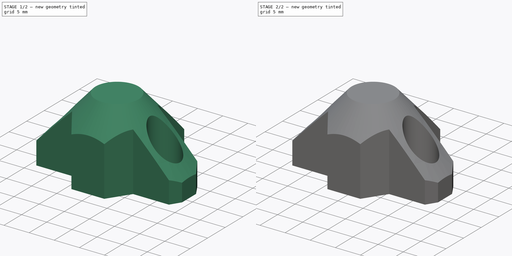
[diagram: build sequence overview — one tinted view per stage of 2, left to right]
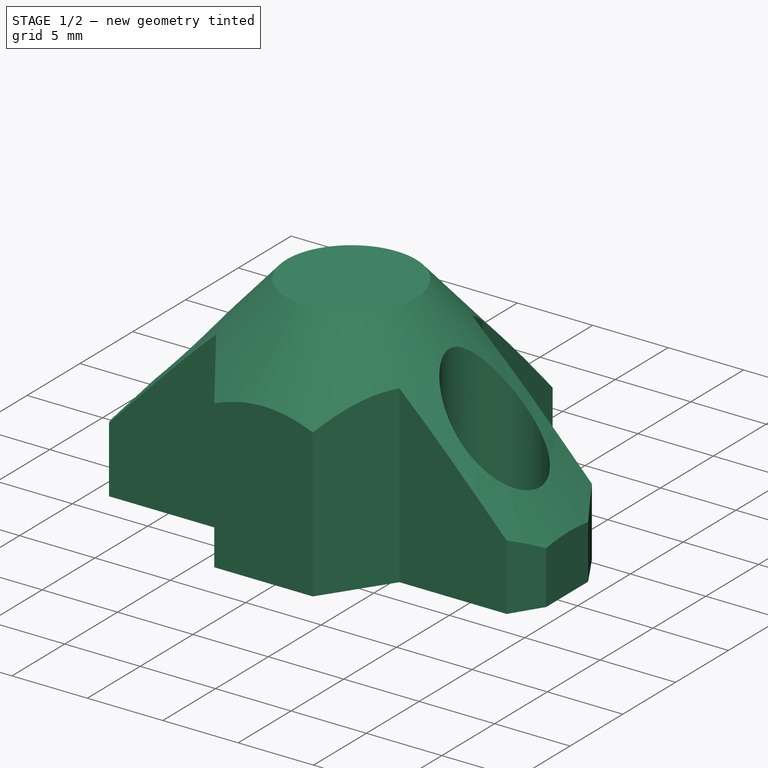
[diagram: stage 1 of 2 — iso view after this stage's code; geometry added in this stage tinted green]
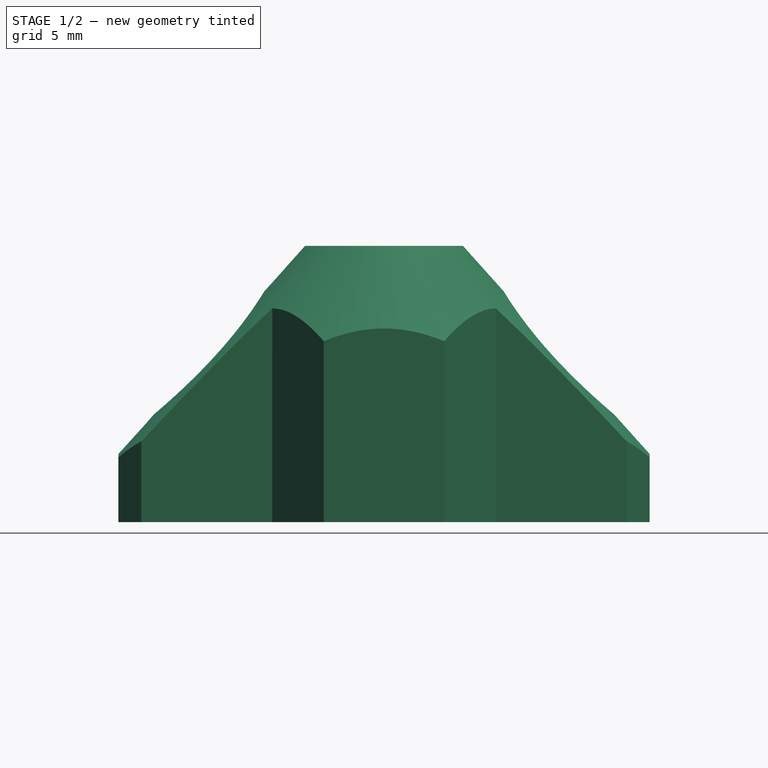
[diagram: stage 1 of 2 — front view after this stage's code; geometry added in this stage tinted green]
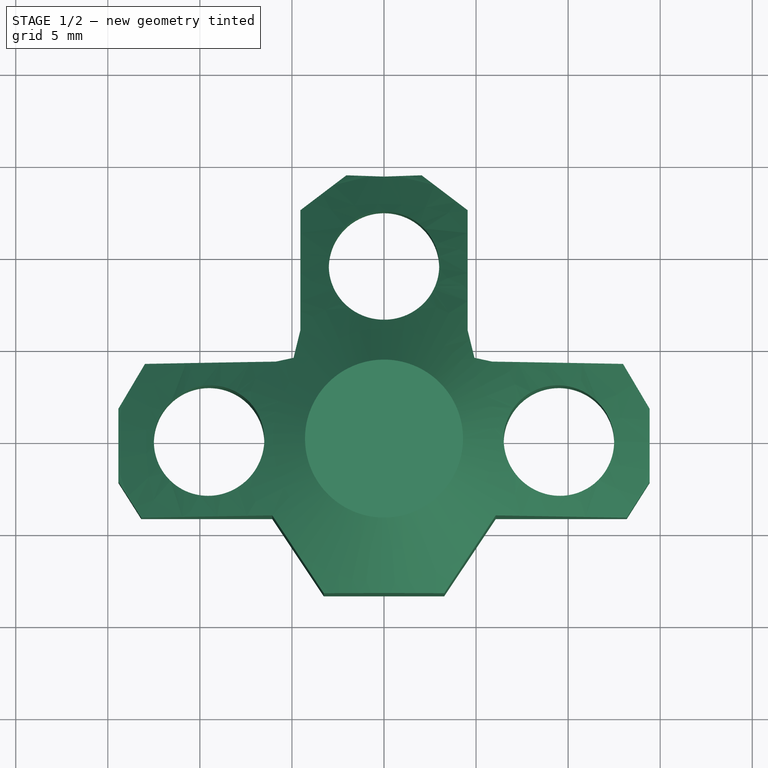
[diagram: stage 1 of 2 — top view after this stage's code; geometry added in this stage tinted green]
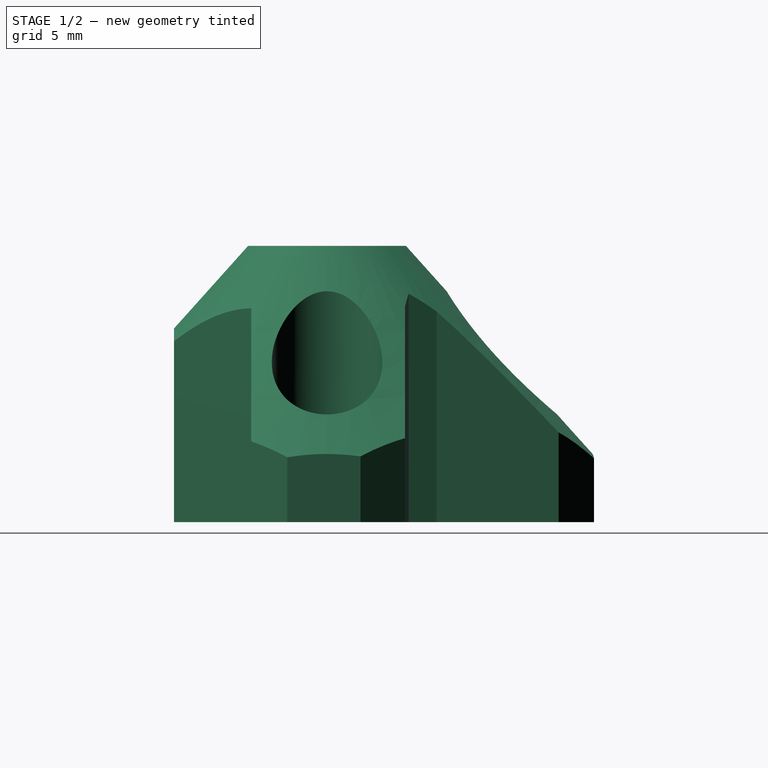
[diagram: stage 1 of 2 — right view after this stage's code; geometry added in this stage tinted green]
FCSTD DOCUMENT  (FreeCAD 0.19R24267 +99 (Git))
Label: 脚垫
License: All rights reserved
LicenseURL: http://en.wikipedia.org/wiki/All_rights_reserved
objects: Sketcher::SketchObject×3, PartDesign::Pad×2, PartDesign::Groove×1, PartDesign::Body×1, App::MeasureDistance×1
note: 10 computed .brp shape members not serialized (recipe doc carries the construction recipe); baked Part::Feature solids carry a one-line shape summary decoded from their .brp

FEATURE [Sketcher::SketchObject] Sketch
  FullyConstrained = false
  MapMode = 5
  Support = -> [XY_Plane]
  sketch-geometry (36):
    g0: LineSegment StartX=0 StartY=9.5 StartZ=0 EndX=0 EndY=0 EndZ=0
    g1: LineSegment StartX=0 StartY=0 StartZ=0 EndX=-9.5 EndY=0 EndZ=0
    g2: LineSegment StartX=0 StartY=0 StartZ=0 EndX=9.5 EndY=0 EndZ=0
    g3: Circle CenterX=0 CenterY=9.5 CenterZ=0 NormalX=0 NormalY=0 NormalZ=1 AngleXU=0 Radius=3
    g4: Circle CenterX=-9.5 CenterY=0 CenterZ=0 NormalX=0 NormalY=0 NormalZ=1 AngleXU=0 Radius=3
    g5: Circle CenterX=9.5 CenterY=0 CenterZ=0 NormalX=0 NormalY=0 NormalZ=1 AngleXU=0 Radius=3
    g6: LineSegment StartX=0 StartY=14.4274 StartZ=0 EndX=-2.04188 EndY=14.5027 EndZ=0
    g7: LineSegment StartX=-2.04188 StartY=14.5027 StartZ=0 EndX=-4.54024 EndY=12.5827 EndZ=0
    g8: LineSegment StartX=-4.54024 StartY=12.5827 StartZ=0 EndX=-4.54024 EndY=8.14015 EndZ=0
    g9: LineSegment StartX=-4.54024 StartY=8.14015 StartZ=0 EndX=-4.54024 EndY=5.95492 EndZ=0
    g10: LineSegment StartX=-4.54024 StartY=5.95492 StartZ=0 EndX=-4.9124 EndY=4.43243 EndZ=0
    g11: LineSegment StartX=-4.9124 StartY=4.43243 StartZ=0 EndX=-5.87368 EndY=4.2379 EndZ=0
    g12: LineSegment StartX=-5.87368 StartY=4.2379 StartZ=0 EndX=-12.9817 EndY=4.2379 EndZ=0
    g13: LineSegment StartX=-12.9817 StartY=4.2379 StartZ=0 EndX=-14.4282 EndY=1.81522 EndZ=0
    g14: LineSegment StartX=-14.4282 StartY=1.81522 StartZ=0 EndX=-14.4282 EndY=0 EndZ=0
    g15: LineSegment StartX=-14.4282 StartY=0 StartZ=0 EndX=-14.4282 EndY=-2.15798 EndZ=0
    g16: LineSegment StartX=-14.4282 StartY=-2.15798 StartZ=0 EndX=-13.1848 EndY=-4.11569 EndZ=0
    g17: LineSegment StartX=-13.1848 StartY=-4.11569 StartZ=0 EndX=-6.06929 EndY=-4.11569 EndZ=0
    g18: LineSegment StartX=-6.06929 StartY=-4.11569 StartZ=0 EndX=-3.26916 EndY=-8.31348 EndZ=0
    g19: LineSegment StartX=-3.26916 StartY=-8.31348 StartZ=0 EndX=0 EndY=-8.31348 EndZ=0
    g20: LineSegment StartX=0 StartY=9.5 StartZ=0 EndX=0 EndY=0 EndZ=0
    g21: LineSegment StartX=0 StartY=0 StartZ=0 EndX=9.5 EndY=0 EndZ=0
    g22: LineSegment StartX=0 StartY=14.4274 StartZ=0 EndX=2.04188 EndY=14.5027 EndZ=0
    g23: LineSegment StartX=2.04188 StartY=14.5027 StartZ=0 EndX=4.54024 EndY=12.5827 EndZ=0
    g24: LineSegment StartX=4.54024 StartY=12.5827 StartZ=0 EndX=4.54024 EndY=8.14015 EndZ=0
    g25: LineSegment StartX=4.54024 StartY=8.14015 StartZ=0 EndX=4.54024 EndY=5.95492 EndZ=0
    g26: LineSegment StartX=4.54024 StartY=5.95492 StartZ=0 EndX=4.9124 EndY=4.43243 EndZ=0
    g27: LineSegment StartX=4.9124 StartY=4.43243 StartZ=0 EndX=5.87368 EndY=4.2379 EndZ=0
    g28: LineSegment StartX=5.87368 StartY=4.2379 StartZ=0 EndX=12.9817 EndY=4.2379 EndZ=0
    g29: LineSegment StartX=12.9817 StartY=4.2379 StartZ=0 EndX=14.4282 EndY=1.81522 EndZ=0
    g30: LineSegment StartX=14.4282 StartY=1.81522 StartZ=0 EndX=14.4282 EndY=0 EndZ=0
    g31: LineSegment StartX=14.4282 StartY=0 StartZ=0 EndX=14.4282 EndY=-2.15798 EndZ=0
    g32: LineSegment StartX=14.4282 StartY=-2.15798 StartZ=0 EndX=13.1848 EndY=-4.11569 EndZ=0
    g33: LineSegment StartX=13.1848 StartY=-4.11569 StartZ=0 EndX=6.06929 EndY=-4.11569 EndZ=0
    g34: LineSegment StartX=6.06929 StartY=-4.11569 StartZ=0 EndX=3.26916 EndY=-8.31348 EndZ=0
    g35: LineSegment StartX=3.26916 StartY=-8.31348 StartZ=0 EndX=0 EndY=-8.31348 EndZ=0
  constraints (54):
    c: Coincident(g0,g-1)
    c: Coincident(g1,g-1)
    c: Coincident(g2,g-1)
    c: Equal(g2,g0)
    c: Equal(g0,g1)
    c: Distance(g0) = 9.5
    c: Diameter(g4) = 6
    c: Equal(g3,g4)
    c: Equal(g5,g3)
    c: PointOnObject(g6,g-2)
    c: Coincident(g6,g7)
    c: Coincident(g7,g8)
    c: Vertical(g8)
    c: Coincident(g8,g9)
    c: Vertical(g9)
    c: Coincident(g9,g10)
    c: Coincident(g10,g11)
    c: Coincident(g11,g12)
    c: Horizontal(g12)
    c: Coincident(g12,g13)
    c: Coincident(g13,g14)
    c: PointOnObject(g14,g-1)
    c: Vertical(g14)
    c: Coincident(g14,g15)
    c: Vertical(g15)
    c: Coincident(g15,g16)
    c: Coincident(g16,g17)
    c: Horizontal(g17)
    c: Coincident(g17,g18)
    c: Coincident(g18,g19)
    c: PointOnObject(g19,g-2)
    c: Horizontal(g19)
    c: Equal(g20,g21)
    c: Distance(g20) = 9.5
    c: Coincident(g22,g23)
    c: Coincident(g23,g24)
    c: Vertical(g24)
    c: Coincident(g24,g25)
    c: Vertical(g25)
    c: Coincident(g25,g26)
    c: Coincident(g26,g27)
    c: Coincident(g27,g28)
    c: Horizontal(g28)
    c: Coincident(g28,g29)
    c: Coincident(g29,g30)
    c: Vertical(g30)
    c: Coincident(g30,g31)
    c: Vertical(g31)
    c: Coincident(g31,g32)
    c: Coincident(g32,g33)
    c: Horizontal(g33)
    c: Coincident(g33,g34)
    c: Coincident(g34,g35)
    c: Horizontal(g35)
FEATURE [PartDesign::Pad] Pad
  Direction = (1,1,1)
  Length = 15
  Length2 = 100
  Profile = -> Sketch
  Type = 0
FEATURE [Sketcher::SketchObject] Sketch001
  FullyConstrained = false
  MapMode = 5
  Placement = pos=(0,0,0) rot=(1,0,0;1.5708rad)
  Support = -> [XZ_Plane]
  sketch-geometry (3):
    g0: LineSegment StartX=3.00014 StartY=16.4385 StartZ=0 EndX=15.4618 EndY=2.54628 EndZ=0
    g1: LineSegment StartX=15.4618 StartY=2.54628 StartZ=0 EndX=18.0595 EndY=16.4385 EndZ=0
    g2: LineSegment StartX=18.0595 StartY=16.4385 StartZ=0 EndX=3.00014 EndY=16.4385 EndZ=0
  constraints (4):
    c: Coincident(g0,g1)
    c: Coincident(g1,g2)
    c: Coincident(g2,g0)
    c: Horizontal(g2)
FEATURE [PartDesign::Groove] Groove
  Angle = 360
  Axis = (0,2e-16,1)
  Base = (0,0,0)
  BaseFeature = -> Pad
  Profile = -> Sketch001
  ReferenceAxis = -> Sketch001 [V_Axis]
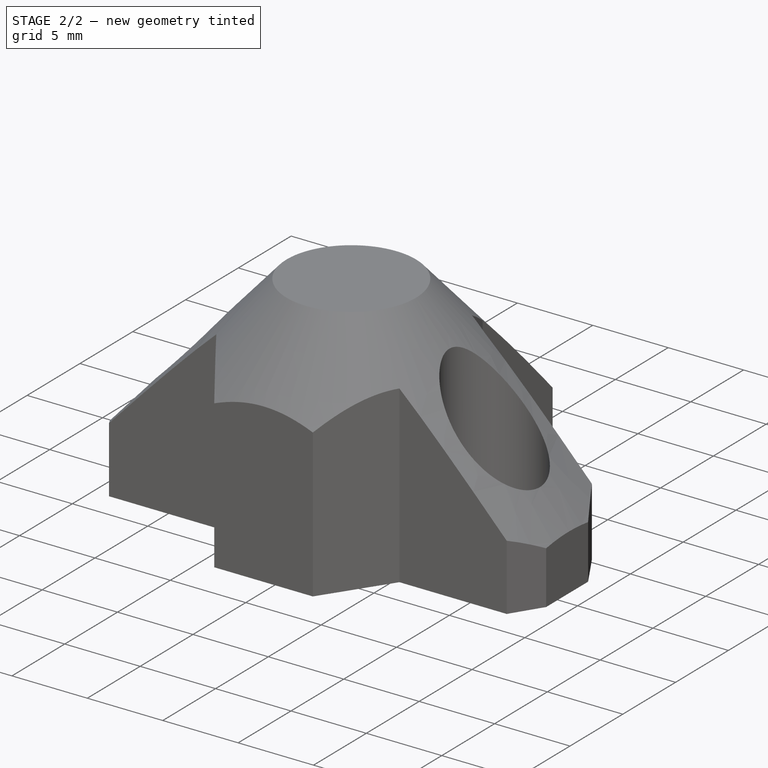
[diagram: stage 2 of 2 — iso view after this stage's code; geometry added in this stage tinted green]
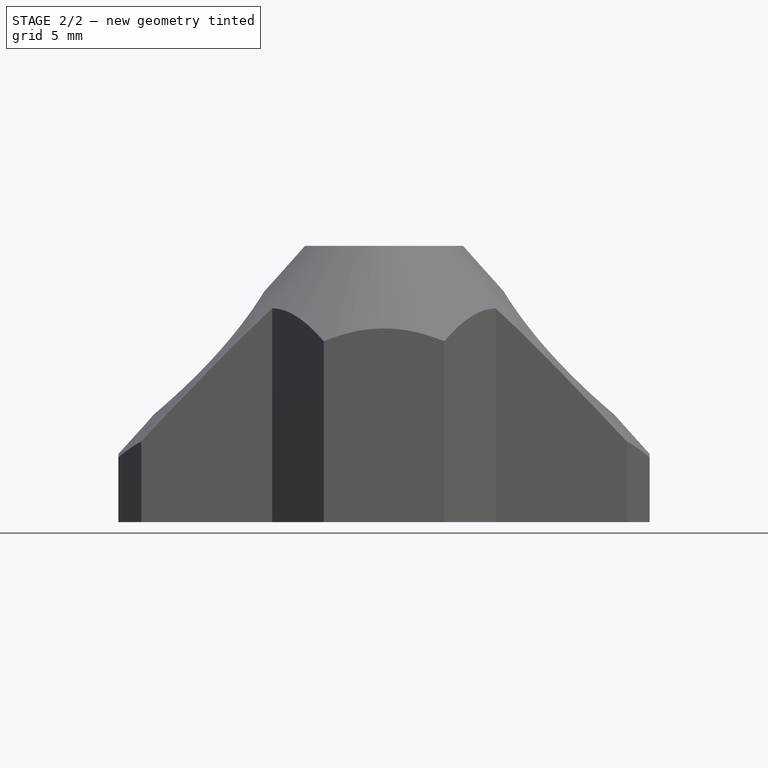
[diagram: stage 2 of 2 — front view after this stage's code; geometry added in this stage tinted green]
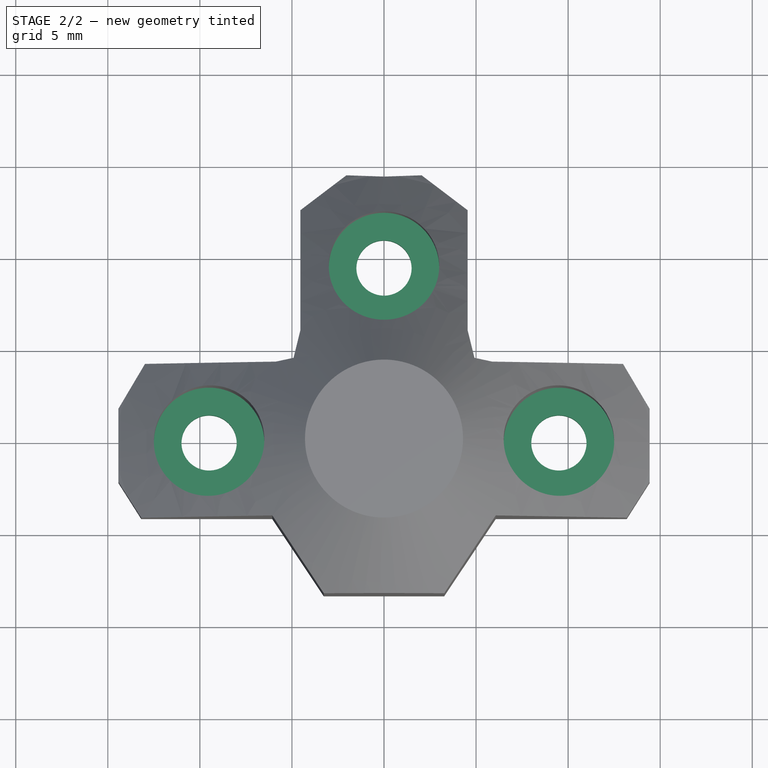
[diagram: stage 2 of 2 — top view after this stage's code; geometry added in this stage tinted green]
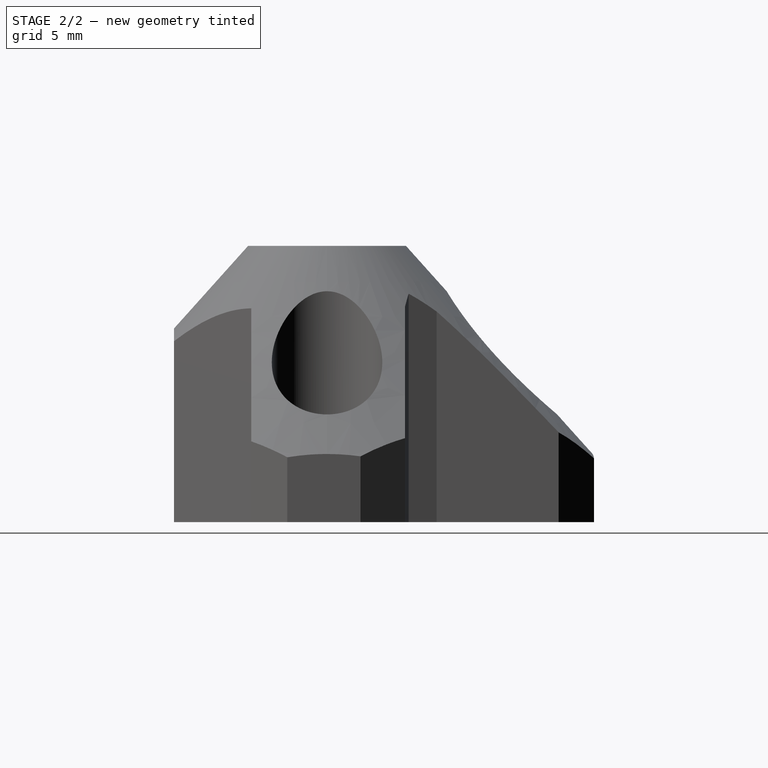
[diagram: stage 2 of 2 — right view after this stage's code; geometry added in this stage tinted green]
FEATURE [Sketcher::SketchObject] Sketch002
  ExternalGeometry = -> [Groove]
  FullyConstrained = false
  MapMode = 5
  Placement = pos=(0,0,0) rot=(1,0,0;3.14159rad)
  Support = -> [Groove]
  sketch-geometry (18):
    g0: Circle CenterX=-9.5 CenterY=0 CenterZ=0 NormalX=0 NormalY=0 NormalZ=1 AngleXU=0 Radius=1.5
    g1: Circle CenterX=9.5 CenterY=0 CenterZ=0 NormalX=0 NormalY=0 NormalZ=1 AngleXU=0 Radius=1.5
    g2: Circle CenterX=0 CenterY=-9.5 CenterZ=0 NormalX=0 NormalY=0 NormalZ=1 AngleXU=0 Radius=1.5
    g3: LineSegment StartX=-12.3071 StartY=3.30232 StartZ=0 EndX=11.6372 EndY=3.30232 EndZ=0
    g4: LineSegment StartX=11.6372 StartY=3.30232 StartZ=0 EndX=13.3314 EndY=0.817521 EndZ=0
    g5: LineSegment StartX=13.3314 StartY=0.817521 StartZ=0 EndX=13.0679 EndY=-2.11905 EndZ=0
    g6: LineSegment StartX=13.0679 StartY=-2.11905 StartZ=0 EndX=11.1855 EndY=-3.4744 EndZ=0
    g7: LineSegment StartX=11.1855 StartY=-3.4744 StartZ=0 EndX=3.39224 EndY=-3.4744 EndZ=0
    g8: LineSegment StartX=3.39224 StartY=-3.4744 StartZ=0 EndX=3.65578 EndY=-9.27225 EndZ=0
    g9: LineSegment StartX=3.65578 StartY=-9.27225 StartZ=0 EndX=2.94046 EndY=-12.6606 EndZ=0
    g10: LineSegment StartX=2.94046 StartY=-12.6606 StartZ=0 EndX=0.342722 EndY=-13.3759 EndZ=0
    g11: LineSegment StartX=0.342722 StartY=-13.3759 StartZ=0 EndX=-2.89504 EndY=-12.7736 EndZ=0
    g12: LineSegment StartX=-2.89504 StartY=-12.7736 StartZ=0 EndX=-3.8739 EndY=-9.15931 EndZ=0
    g13: LineSegment StartX=-3.8739 StartY=-9.15931 StartZ=0 EndX=-3.45977 EndY=-4.52855 EndZ=0
    g14: LineSegment StartX=-3.45977 StartY=-4.52855 StartZ=0 EndX=-5.45513 EndY=-2.98497 EndZ=0
    g15: LineSegment StartX=-5.45513 StartY=-2.98497 StartZ=0 EndX=-11.7048 EndY=-3.73794 EndZ=0
    g16: LineSegment StartX=-11.7048 StartY=-3.73794 StartZ=0 EndX=-13.7378 EndY=-1.36609 EndZ=0
    g17: LineSegment StartX=-13.7378 StartY=-1.36609 StartZ=0 EndX=-12.3071 EndY=3.30232 EndZ=0
  constraints (23):
    c: Coincident(g0,g-3)
    c: Coincident(g1,g-4)
    c: Coincident(g2,g-5)
    c: Equal(g0,g2)
    c: Equal(g2,g1)
    c: Diameter(g0) = 3
    c: Horizontal(g3)
    c: Coincident(g3,g4)
    c: Coincident(g4,g5)
    c: Coincident(g5,g6)
    c: Coincident(g6,g7)
    c: Horizontal(g7)
    c: Coincident(g7,g8)
    c: Coincident(g8,g9)
    c: Coincident(g9,g10)
    c: Coincident(g10,g11)
    c: Coincident(g11,g12)
    c: Coincident(g12,g13)
    c: Coincident(g13,g14)
    c: Coincident(g14,g15)
    c: Coincident(g15,g16)
    c: Coincident(g16,g17)
    c: Coincident(g17,g3)
FEATURE [PartDesign::Pad] Pad001
  BaseFeature = -> Groove
  Direction = (1,1,1)
  Length = 1.5
  Length2 = 100
  Profile = -> Sketch002
  Reversed = true
  Type = 0
FEATURE [PartDesign::Body] Body
  Group = -> [Sketch,Pad,Sketch001,Groove,Sketch002,Pad001]
  Origin = -> Origin
  Tip = -> Pad001
FEATURE [App::MeasureDistance] Distance  label="Distance: 8.98 mm"
  Distance = 8.9783
  P1 = (4.47833,12.5714,4.90042)
  P2 = (-4.49956,12.5092,4.96081)
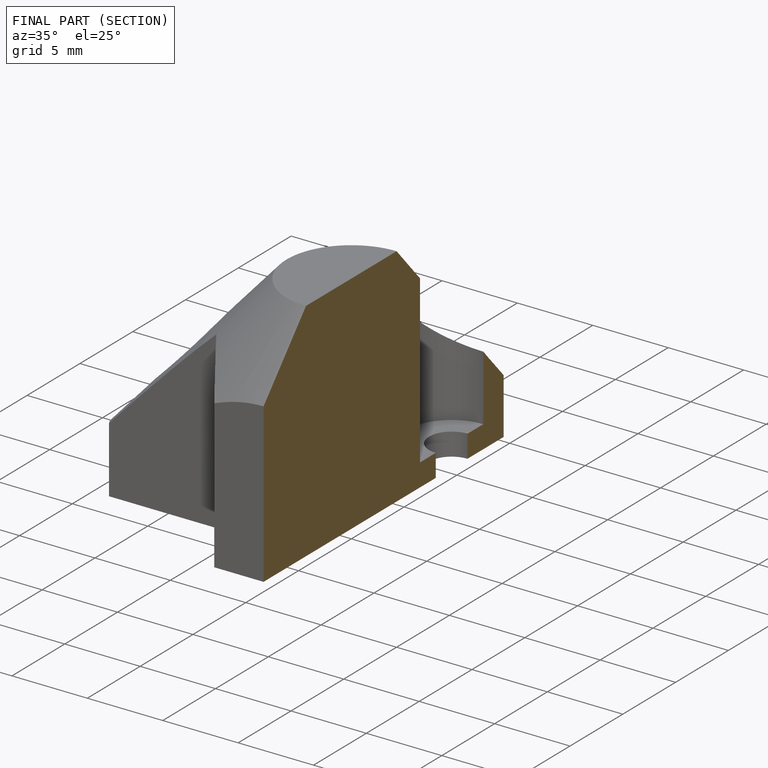
[diagram: finished part — half-section view (interior)]
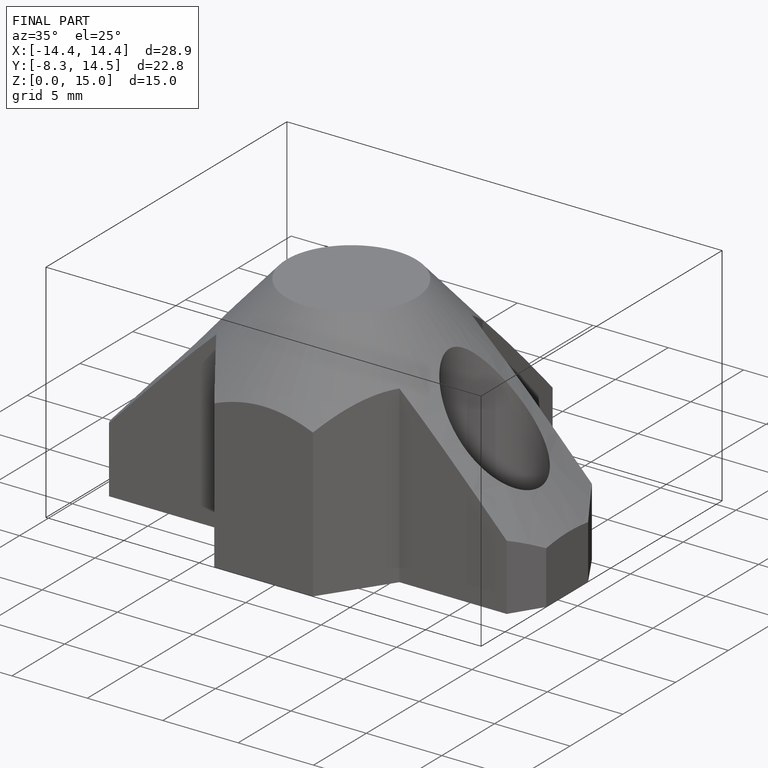
[diagram: finished part — iso view with bounding-box wireframe]
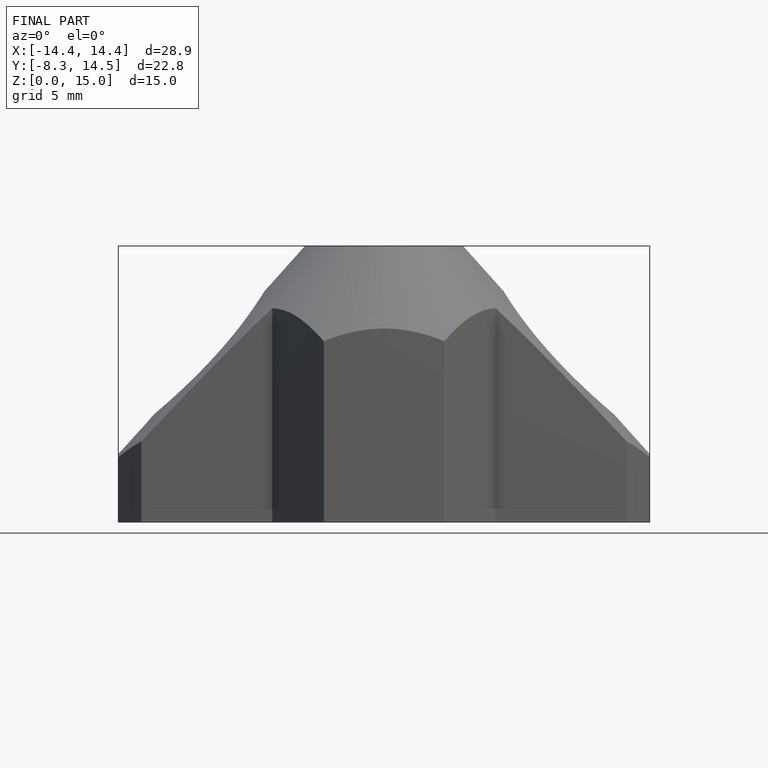
[diagram: finished part — front view with bounding-box wireframe]
